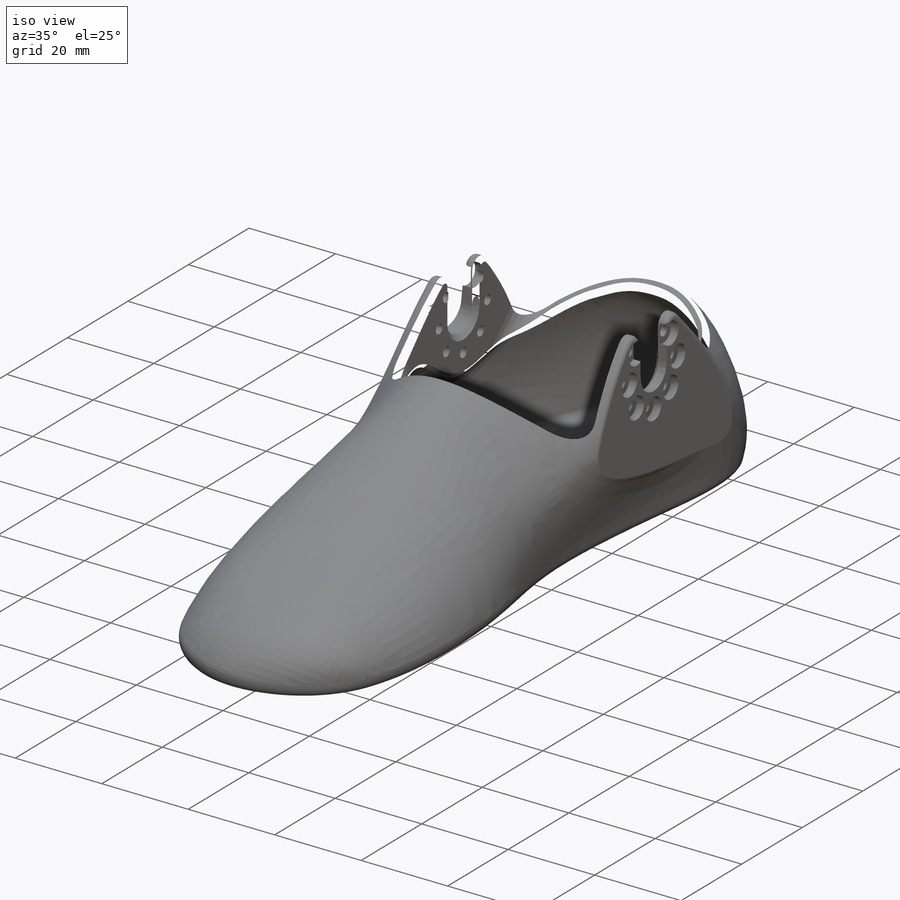
[diagram: iso view]
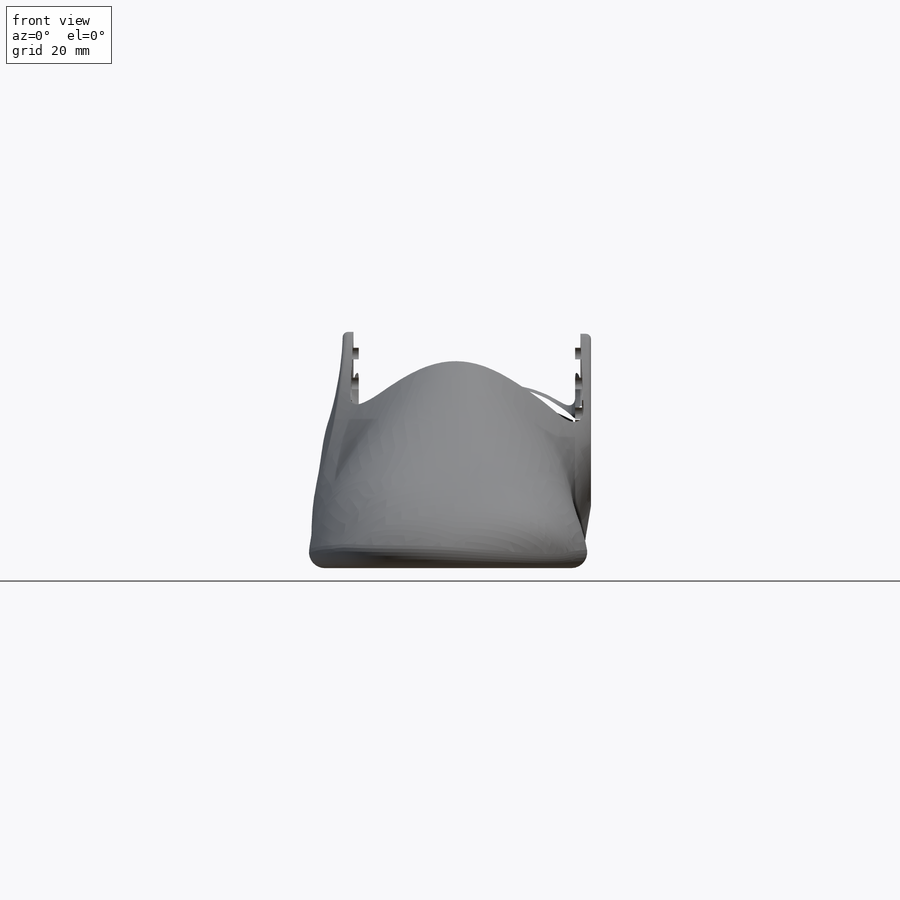
[diagram: front view]
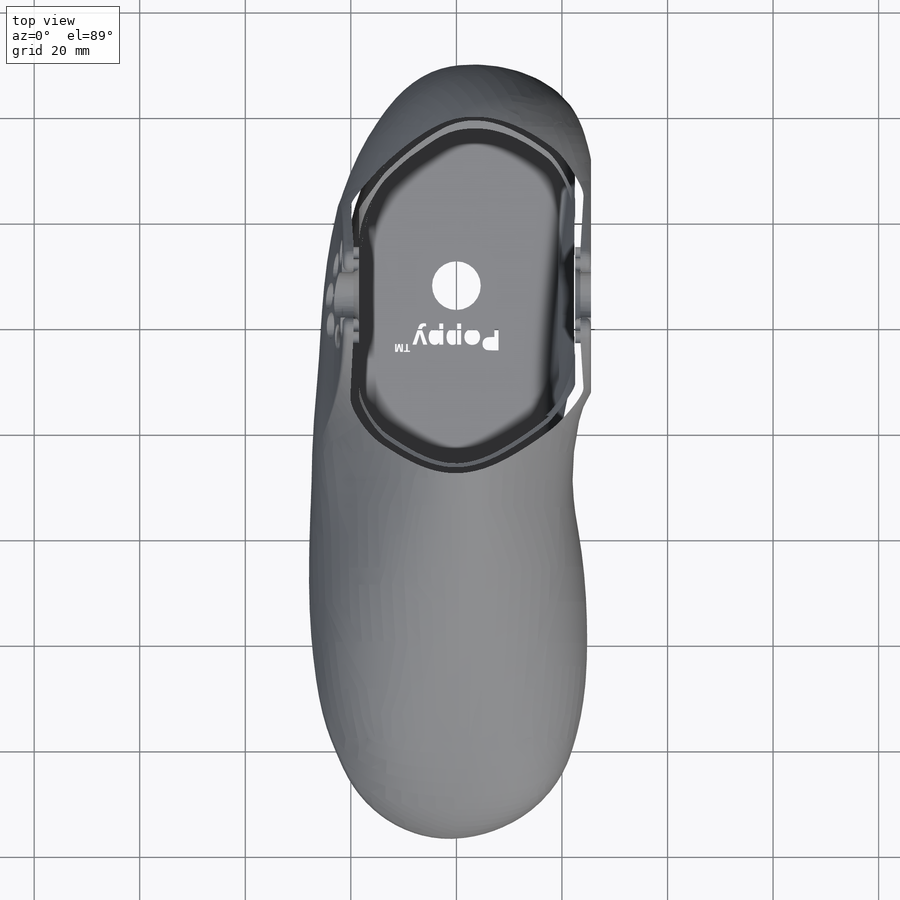
[diagram: top view]
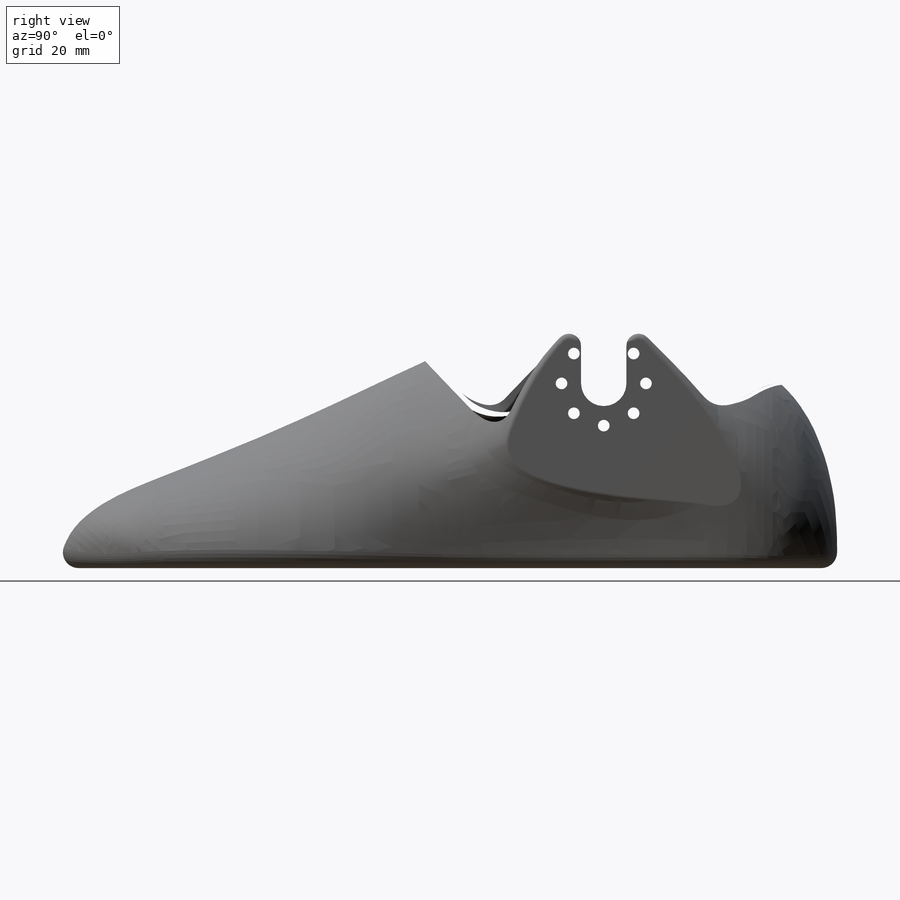
[diagram: right view]
SOLIDWORKS PART (.sldprt)
format: sldprt  version: not decoded by parser v0  size: 5,031,936 bytes
history: native  units: mm
features: sketch x38, plane x14, fillet x10, cut_extrude x7, extrude x2, hole x2, material x1, chamfer x1, mirror x1, delete_body x1 (+14 scaffold rows collapsed; 2 parser-record rows omitted)
feature tree (93):
  scaffold x14  (default folders/planes/origin — collapsed)
  material  "Polyamide"
  parser-record x2  (decoder bookkeeping rows leaked as tree rows — omitted from the tree; the rows remain in map.json)
  sketch  "lateral_dimensions"  dims[D1=50.0mm D2=97.0mm D3=47.0mm D4=29.4mm D5=102.9mm D6=132.3mm D7=31.4mm D8=4.0mm]
  sketch  "planes_positions"
  sketch  "top_dimensions"  dims[c1.D1=28.5mm c1.D2=26.0mm c2.D1=26.0mm c2.D2=28.5mm]
  sketch  "lateral_shape"
  plane  "sole_plane"
  sketch  "sole_shape"  dims[D1=~51.73616mm]
  plane  "mid_top_plane"
  sketch  "mid_top_dimensions"
  sketch  "Sketch1"
  plane  "Plane2"
  sketch  "Sketch2"
  plane  "Plane3"
  sketch  "Sketch3"
  plane  "Plane4"
  sketch  "Sketch4"
  plane  "Plane6"
  sketch  "Sketch6"
  plane  "Plane8"
  sketch  "Sketch8"
  plane  "Plane9"
  sketch  "Sketch9"
  plane  "Plane7"  Offset=90mm
  sketch  "3DSketch3"
  sketch  "3DSketch8"
  sketch  "3DSketch9"
  sketch  "3DSketch1"
  sketch  "3DSketch2"
  sketch  "3DSketch6"
  sketch  "3DSketch4"
  sketch  "3DSketch5"
  plane  "ankle_motor_middle_plane"  Offset=2mm
  sketch  "ankle_y_front_dimension"  dims[c1.D2=22.0mm c1.D6=2.0mm c1.D7=16.0mm c1.D9=8.0mm c1.D11=~12.272978mm c1.D12=0.75mm c1.D1=35.6mm c1.D3=12.0mm c1.D4=50.6mm c1.D5=35.0mm c1.D10=~5.107608mm c2.D10=60.0deg c2.D11=1.0mm c2.D8=8.0]
  plane  "Plane10"
  sketch  "ankle_lateral_dimension"  dims[D1=35.5mm D2=41.0mm]
  sketch  "Sketch22"  dims[D1=0.3mm]
  sketch  "ankle_motor_motion"  dims[c1.D2=45.0deg c1.D1=~20.639141mm c2.D1=10.0deg c2.D2=1.0mm c2.D3=2.0mm c2.D4=~0.548887mm c2.D5=~2.461623mm c2.D6=38.6mm c3.D6=45.0deg c3.D7=50.6mm c4.D7=45.0deg c4.D4=2.0 c4.D5=2.0]
  sketch  "Sketch13"  dims[D1=1.0mm D2=~46.408799mm]
  extrude  "Boss-Extrude1"  Depth=47mm
  sketch  "Sketch14"
  cut_extrude  "Cut-Extrude1"  [1 undecoded]
  fillet  "Fillet1"  Radius=20mm
  fillet  "Fillet2"  Radius=60mm
  sketch  "Sketch27"  dims[D1=0.0mm]
  extrude  "Boss-Extrude2"  Depth=3mm
  sketch  "Sketch16"  dims[c1.D3=40.0mm c1.D4=40.0mm c2.D3=~42.934369mm c2.D1=0.5mm c2.D2=0.5mm c2.D4=1.0mm c2.D5=~7.484479mm c3.D1=0.5mm c3.D2=0.5mm c3.D3=0.5mm]
  cut_extrude  "Cut-Extrude3"  [1 undecoded]
  fillet  "Fillet17"  Radius=6mm
  fillet  "Fillet12"  Radius=5mm
  plane  "Plane13"
  fillet  "Fillet19"  Radius=2mm
  fillet  "Fillet5"  Radius=3mm
  fillet  "Fillet23"  Radius=5mm
  hole  "CBORE for M2 Pan Head Machine Screw1"  Diameter=2.2mm Depth=3mm
  sketch  "Sketch18"
  sketch  "Sketch17"  dims[hole-wizard template sketch: 42 standard entries collapsed; hole parameters kept: c12.Thru Hole Depth=3.0mm c12.C'Bore Dia.=5.0mm c12.C'Bore Depth=1.7mm]
  plane  "Plane12"  Offset=8mm
  hole  "CBORE for M2 Pan Head Machine Screw2"  Diameter=2.2mm Depth=8mm
  sketch  "Sketch20"
  sketch  "Sketch19"  dims[hole-wizard template sketch: 42 standard entries collapsed; hole parameters kept: c12.Thru Hole Depth=8.0mm c12.C'Bore Dia.=5.0mm c12.C'Bore Depth=6.7mm]
  sketch  "Sketch21"  dims[D1=0.3mm]
  cut_extrude  "Cut-Extrude4"  [1 undecoded]
  sketch  "Sketch24"
  chamfer  "Chamfer3"  Distance=1mm Angle=45deg
  sketch  "Sketch26"
  cut_extrude  "Cut-Extrude8"  Depth=2mm
  cut_extrude  "Cut-Extrude6"  [1 undecoded]
  fillet  "Fillet20"  Radius=2.3mm
  fillet  "Fillet21"  Radius=1mm
  fillet  "Fillet22"  Radius=4mm
  mirror  "Mirror1"
  delete_body  "Body-Delete1"
  sketch  "Sketch30"  dims[D1=2.8mm D2=10.0mm]
  sketch  "Sketch31"  dims[D1=0.7mm D2=1.75mm]
  cut_extrude  "Poppy_trademark"  Depth=0.7mm
  cut_extrude  "Cut-Extrude10"  [1 undecoded]
  plane  "ankle_left_middle_plane"
decode coverage: 32 of 62 modeling features carry decoded parameters
note: ~ marks probable driven/reference dimensions
note: 5 parameter values undecoded
summary: no parameter record found for 5 features
note: suppression state not decoded; provenance and decode notes live in map.json
